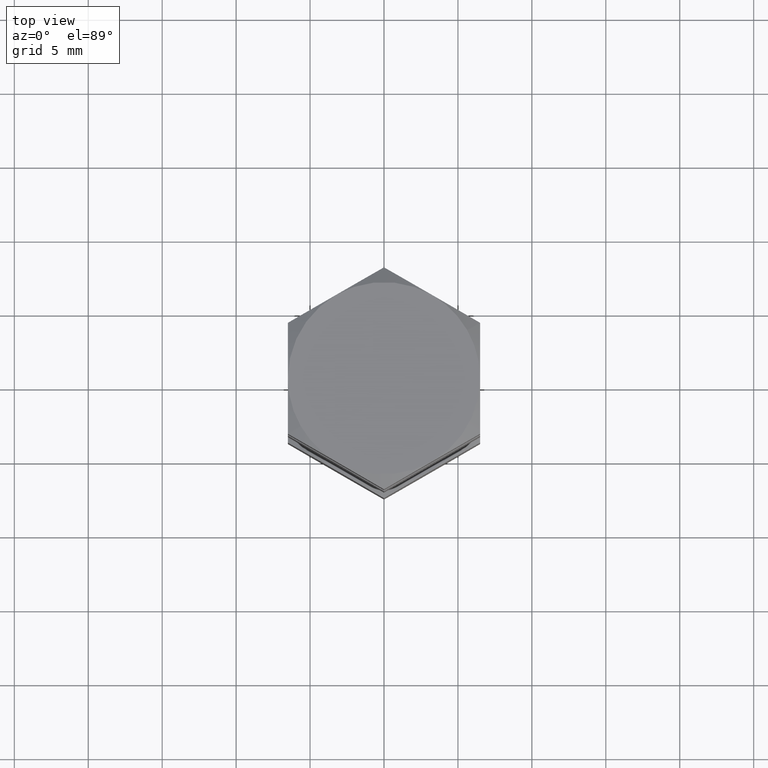
[diagram: clean part render]
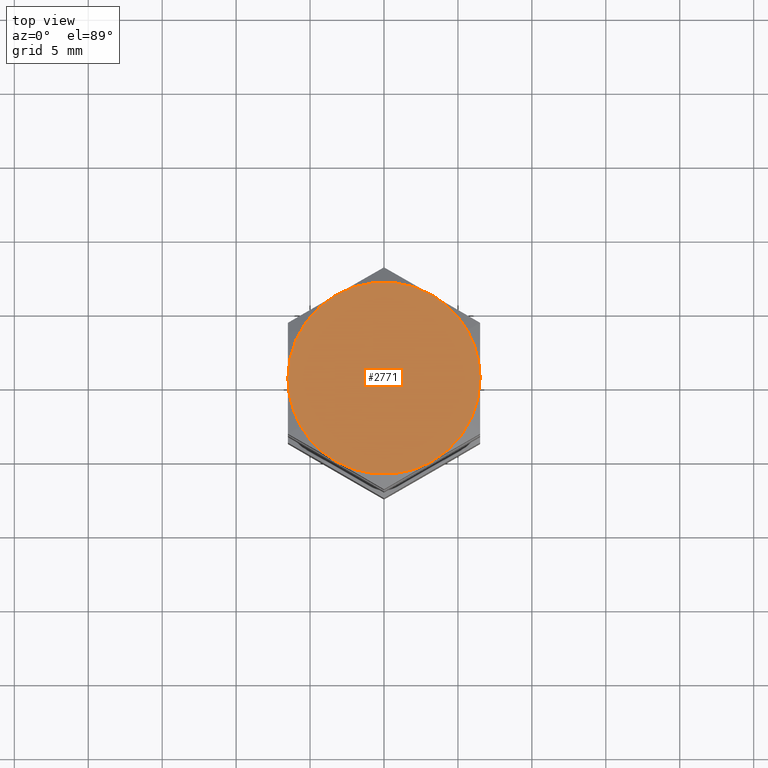
[diagram: same view with one face highlighted and labeled with its STEP entity id]
A machine part, top view. The second image highlights one B-rep face of the part: STEP entity #2771.
In plain terms, the highlighted planar face has unit normal (0, 0, 1).
Its self-contained STEP definition (entity closure, byte-faithful):
#135=CARTESIAN_POINT('',(5.629165124598852,3.250000000000003,5.300000000000001));
#136=VERTEX_POINT('',#135);
#143=CARTESIAN_POINT('',(3.250000000000004,5.629165124598848,5.300000000000002));
#144=VERTEX_POINT('',#143);
#158=CARTESIAN_POINT('',(4.215647E-016,-7.301715E-016,5.300000000000001));
#159=DIRECTION('',(-6.406189E-017,-3.698615E-017,1.0));
#160=DIRECTION('',(-0.866025403784438,-0.500000000000000,-7.397229E-017));
#161=AXIS2_PLACEMENT_3D('',#158,#159,#160);
#162=CIRCLE('',#161,6.500000000000002);
#163=EDGE_CURVE('',#136,#144,#162,.T.);
#173=CARTESIAN_POINT('',(-5.629165124598852,-3.250000000000003,5.300000000000001));
#174=VERTEX_POINT('',#173);
#183=CARTESIAN_POINT('',(-6.500000000000002,-7.301715E-016,5.300000000000001));
#184=VERTEX_POINT('',#183);
#185=CARTESIAN_POINT('',(4.215647E-016,-7.301715E-016,5.300000000000001));
#186=DIRECTION('',(-6.406189E-017,-3.698615E-017,1.0));
#187=DIRECTION('',(-0.866025403784438,-0.500000000000000,-7.397229E-017));
#188=AXIS2_PLACEMENT_3D('',#185,#186,#187);
#189=CIRCLE('',#188,6.500000000000002);
#190=EDGE_CURVE('',#184,#174,#189,.T.);
#2350=CARTESIAN_POINT('',(-3.250000000000004,-5.629165124598848,5.300000000000001));
#2351=VERTEX_POINT('',#2350);
#2365=CARTESIAN_POINT('',(4.215647E-016,-7.301715E-016,5.300000000000001));
#2366=DIRECTION('',(-6.406189E-017,-3.698615E-017,1.0));
#2367=DIRECTION('',(-0.866025403784438,-0.500000000000000,-7.397229E-017));
#2368=AXIS2_PLACEMENT_3D('',#2365,#2366,#2367);
#2369=CIRCLE('',#2368,6.500000000000002);
#2370=EDGE_CURVE('',#174,#2351,#2369,.T.);
#2380=CARTESIAN_POINT('',(3.249999999999990,-5.629165124598856,5.300000000000001));
#2381=VERTEX_POINT('',#2380);
#2397=CARTESIAN_POINT('',(4.215647E-016,-7.301715E-016,5.300000000000001));
#2398=DIRECTION('',(-6.406189E-017,-3.698615E-017,1.0));
#2399=DIRECTION('',(-0.866025403784438,-0.500000000000000,-7.397229E-017));
#2400=AXIS2_PLACEMENT_3D('',#2397,#2398,#2399);
#2401=CIRCLE('',#2400,6.500000000000002);
#2402=EDGE_CURVE('',#2351,#2381,#2401,.T.);
#2427=CARTESIAN_POINT('',(-3.249999999999990,5.629165124598855,5.300000000000002));
#2428=VERTEX_POINT('',#2427);
#2455=CARTESIAN_POINT('',(4.215647E-016,-7.301715E-016,5.300000000000001));
#2456=DIRECTION('',(-6.406189E-017,-3.698615E-017,1.0));
#2457=DIRECTION('',(-0.866025403784438,-0.500000000000000,-7.397229E-017));
#2458=AXIS2_PLACEMENT_3D('',#2455,#2456,#2457);
#2459=CIRCLE('',#2458,6.500000000000002);
#2460=EDGE_CURVE('',#2428,#184,#2459,.T.);
#2498=CARTESIAN_POINT('',(4.215647E-016,-7.301715E-016,5.300000000000001));
#2499=DIRECTION('',(-6.406189E-017,-3.698615E-017,1.0));
#2500=DIRECTION('',(-0.866025403784438,-0.500000000000000,-7.397229E-017));
#2501=AXIS2_PLACEMENT_3D('',#2498,#2499,#2500);
#2502=CIRCLE('',#2501,6.500000000000002);
#2503=EDGE_CURVE('',#144,#2428,#2502,.T.);
#2513=CARTESIAN_POINT('',(6.499999999999999,1.024957E-016,5.300000000000001));
#2514=VERTEX_POINT('',#2513);
#2530=CARTESIAN_POINT('',(4.215647E-016,-7.301715E-016,5.300000000000001));
#2531=DIRECTION('',(-6.406189E-017,-3.698615E-017,1.0));
#2532=DIRECTION('',(-0.866025403784438,-0.500000000000000,-7.397229E-017));
#2533=AXIS2_PLACEMENT_3D('',#2530,#2531,#2532);
#2534=CIRCLE('',#2533,6.500000000000002);
#2535=EDGE_CURVE('',#2381,#2514,#2534,.T.);
#2559=CARTESIAN_POINT('',(4.215647E-016,-7.301715E-016,5.300000000000001));
#2560=DIRECTION('',(-6.406189E-017,-3.698615E-017,1.0));
#2561=DIRECTION('',(-0.866025403784438,-0.500000000000000,-7.397229E-017));
#2562=AXIS2_PLACEMENT_3D('',#2559,#2560,#2561);
#2563=CIRCLE('',#2562,6.500000000000002);
#2564=EDGE_CURVE('',#2514,#136,#2563,.T.);
#2756=CARTESIAN_POINT('',(-6.938894E-016,1.387779E-016,5.300000000000001));
#2757=DIRECTION('',(0.0,0.0,1.0));
#2758=DIRECTION('',(1.0,0.0,0.0));
#2759=AXIS2_PLACEMENT_3D('',#2756,#2757,#2758);
#2760=PLANE('',#2759);
#2761=ORIENTED_EDGE('',*,*,#2402,.T.);
#2762=ORIENTED_EDGE('',*,*,#2535,.T.);
#2763=ORIENTED_EDGE('',*,*,#2564,.T.);
#2764=ORIENTED_EDGE('',*,*,#163,.T.);
#2765=ORIENTED_EDGE('',*,*,#2503,.T.);
#2766=ORIENTED_EDGE('',*,*,#2460,.T.);
#2767=ORIENTED_EDGE('',*,*,#190,.T.);
#2768=ORIENTED_EDGE('',*,*,#2370,.T.);
#2769=EDGE_LOOP('',(#2761,#2762,#2763,#2764,#2765,#2766,#2767,#2768));
#2770=FACE_OUTER_BOUND('',#2769,.T.);
#2771=ADVANCED_FACE('',(#2770),#2760,.T.);